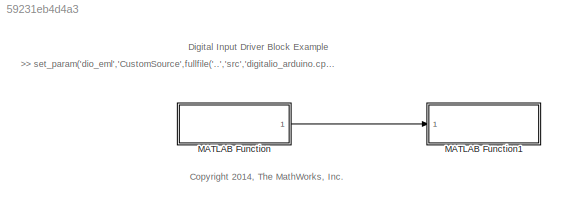
MODEL slx_59231eb4d4a3
KIND model
CONFIG AbsTol = auto
CONFIG FixedStep = auto
CONFIG MaxStep = auto
CONFIG MinStep = auto
CONFIG RelTol = 1e-3
CONFIG SampleTimeConstraint = Unconstrained
CONFIG Solver = FixedStepDiscrete
CONFIG SolverMode = Auto
CONFIG SolverName = FixedStepDiscrete
CONFIG StartTime = 0.0
CONFIG StopTime = 10.0
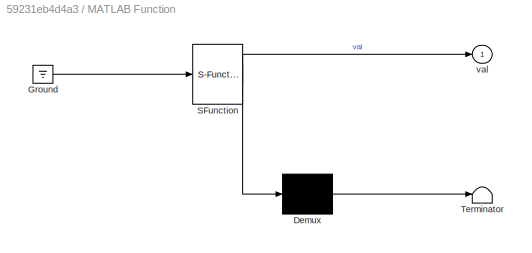
BLOCK [SubSystem] MATLAB Function
  ErrorFcn = Stateflow.Translate.translate
  PermitHierarchicalResolution = ExplicitOnly
  Ports = [0, 1]
  RequestExecContextInheritance = off
  SFBlockType = MATLAB Function
  TreatAsAtomicUnit = on
BLOCK [Demux] MATLAB Function/ Demux 
  Outputs = 1
  Ports = [1, 1]
BLOCK [Ground] MATLAB Function/ Ground 
BLOCK [S-Function] MATLAB Function/ SFunction 
  EnableBusSupport = on
  FunctionName = sf_sfun
  Parameters = pin
  PortCounts = [1 2]
  Ports = [1, 2]
  Tag = Stateflow S-Function dio_eml 2
BLOCK [Terminator] MATLAB Function/ Terminator 
BLOCK [Outport] MATLAB Function/val
  IconDisplay = Port number
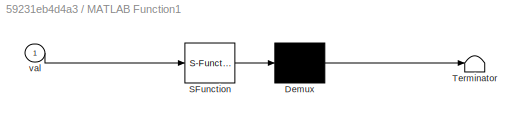
BLOCK [SubSystem] MATLAB Function1
  ErrorFcn = Stateflow.Translate.translate
  PermitHierarchicalResolution = ExplicitOnly
  Ports = [1]
  RequestExecContextInheritance = off
  SFBlockType = MATLAB Function
  TreatAsAtomicUnit = on
BLOCK [Demux] MATLAB Function1/ Demux 
  Outputs = 1
  Ports = [1, 1]
BLOCK [S-Function] MATLAB Function1/ SFunction 
  EnableBusSupport = on
  FunctionName = sf_sfun
  Parameters = pin
  PortCounts = [1 1]
  Ports = [1, 1]
  Tag = Stateflow S-Function dio_eml 1
BLOCK [Terminator] MATLAB Function1/ Terminator 
BLOCK [Inport] MATLAB Function1/val
  IconDisplay = Port number
ANNOTATION (root): >> set_param('dio_eml','CustomSource',fullfile('..','src','digitalio_arduino.cpp'))
ANNOTATION (root): <copyright redacted>
ANNOTATION (root): Digital Input Driver Block Example
LINE MATLAB Function:1 -> MATLAB Function1:1
CHART MATLAB Function1 states=1 transitions=1
  STATE_LABEL 'eML_blk_kernel()'
  STATE_LABEL "SCRIPT:\nfunction digitalWrite(pin,in)\n%#codegen\n\npersistent initflag;\n\nif strcmp(coder.target, 'rtw'),\n    \n    if isempty(initflag),\n        % Initialize step\n        coder.ceval('digitalIOSetup',uint8(pin),true);\n        initflag = 1;\n    else\n        % output Step\n        coder.ceval('writeDigitalPin',uint8(pin),logical(in));\n    end\n    \nend"
CHART MATLAB Function states=1 transitions=1
  STATE_LABEL 'eML_blk_kernel()'
  STATE_LABEL "SCRIPT:\nfunction out=digitalRead(pin)\n%#codegen\n\npersistent initflag;\nout=0;\n\nif strcmp(coder.target, 'rtw'),\n    \n    if isempty(initflag),\n        % Initialize step\n        coder.ceval('digitalIOSetup',uint8(pin),false);\n        initflag = 1;\n    else\n        % output Step\n        out=coder.ceval('readDigitalPin',uint8(pin));\n    end\n    \nend"
